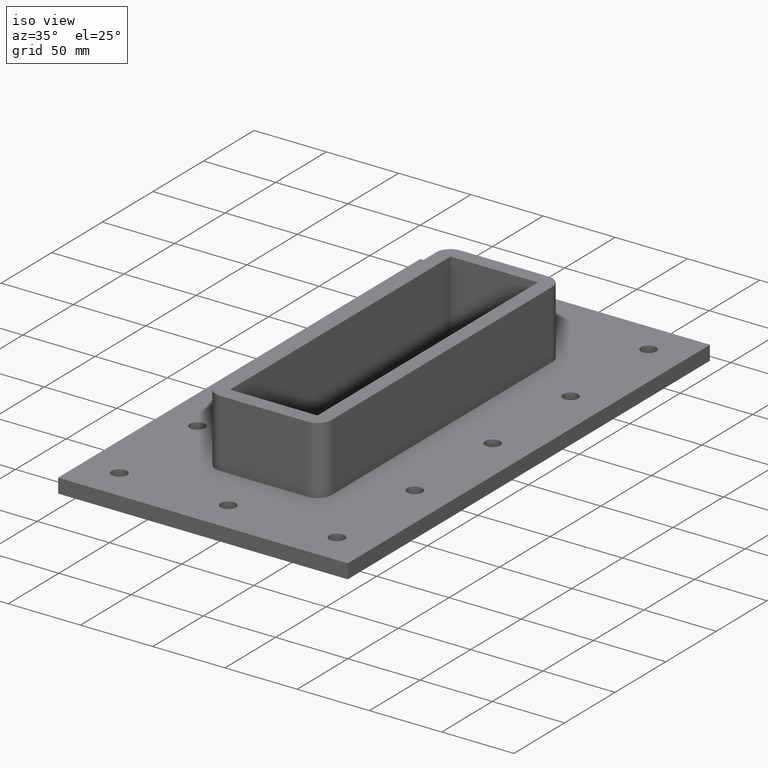
[diagram: clean part render]
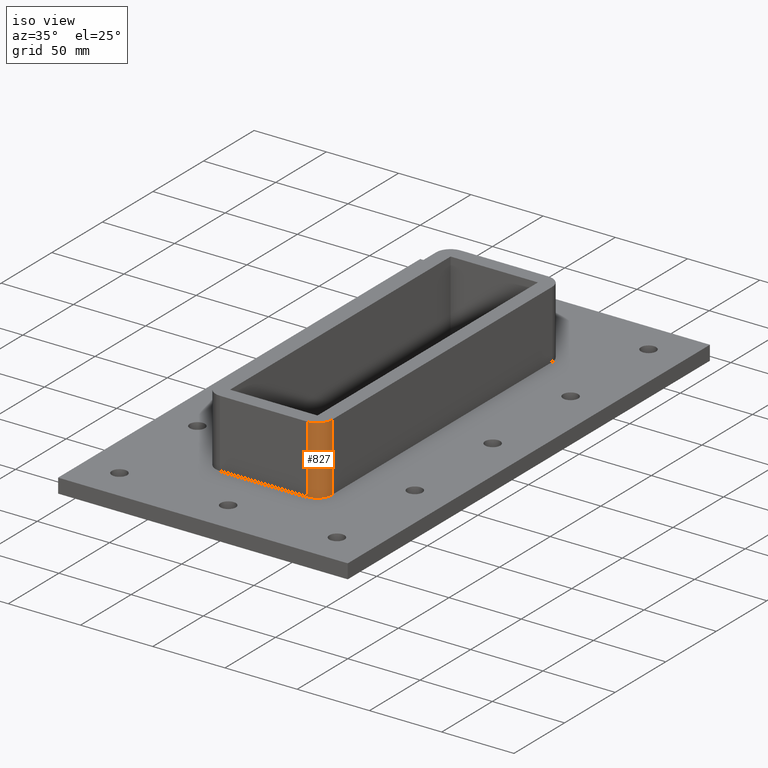
[diagram: same view with one face highlighted and labeled with its STEP entity id]
A machine part, iso view. The second image highlights one B-rep face of the part: STEP entity #827.
In plain terms, the highlighted cylindrical surface (edge-blend (fillet) strip) has radius 10 mm, axis along (0, 0, 1).
Its self-contained STEP definition (entity closure, byte-faithful):
#586=CARTESIAN_POINT('',(40.250000000000057,-109.00000000000003,-17.0));
#587=VERTEX_POINT('',#586);
#594=CARTESIAN_POINT('',(30.249999999999986,-119.00000000000003,-17.0));
#595=VERTEX_POINT('',#594);
#596=CARTESIAN_POINT('',(30.249999999999982,-108.99999999999984,-17.0));
#597=DIRECTION('',(0.0,0.0,1.0));
#598=DIRECTION('',(0.707106781186548,-0.707106781186547,0.0));
#599=AXIS2_PLACEMENT_3D('',#596,#597,#598);
#600=CIRCLE('',#599,10.0);
#601=EDGE_CURVE('',#595,#587,#600,.T.);
#796=CARTESIAN_POINT('',(30.249999999999982,-108.99999999999984,0.0));
#797=DIRECTION('',(0.0,0.0,1.0));
#798=DIRECTION('',(0.707106781186548,-0.707106781186547,0.0));
#799=AXIS2_PLACEMENT_3D('',#796,#797,#798);
#800=CYLINDRICAL_SURFACE('',#799,10.0);
#801=ORIENTED_EDGE('',*,*,#601,.T.);
#802=CARTESIAN_POINT('',(40.249999999999986,-108.99999999999984,30.0));
#803=VERTEX_POINT('',#802);
#804=CARTESIAN_POINT('',(40.249999999999986,-108.99999999999984,-17.0));
#805=DIRECTION('',(0.0,0.0,1.0));
#806=VECTOR('',#805,47.0);
#807=LINE('',#804,#806);
#808=EDGE_CURVE('',#587,#803,#807,.T.);
#809=ORIENTED_EDGE('',*,*,#808,.T.);
#810=CARTESIAN_POINT('',(30.249999999999986,-118.99999999999984,30.0));
#811=VERTEX_POINT('',#810);
#812=CARTESIAN_POINT('',(30.249999999999982,-108.99999999999984,30.0));
#813=DIRECTION('',(0.0,0.0,-1.0));
#814=DIRECTION('',(0.707106781186548,-0.707106781186547,0.0));
#815=AXIS2_PLACEMENT_3D('',#812,#813,#814);
#816=CIRCLE('',#815,10.0);
#817=EDGE_CURVE('',#803,#811,#816,.T.);
#818=ORIENTED_EDGE('',*,*,#817,.T.);
#819=CARTESIAN_POINT('',(30.249999999999982,-118.99999999999984,30.0));
#820=DIRECTION('',(0.0,0.0,-1.0));
#821=VECTOR('',#820,47.0);
#822=LINE('',#819,#821);
#823=EDGE_CURVE('',#811,#595,#822,.T.);
#824=ORIENTED_EDGE('',*,*,#823,.T.);
#825=EDGE_LOOP('',(#801,#809,#818,#824));
#826=FACE_OUTER_BOUND('',#825,.T.);
#827=ADVANCED_FACE('',(#826),#800,.T.);